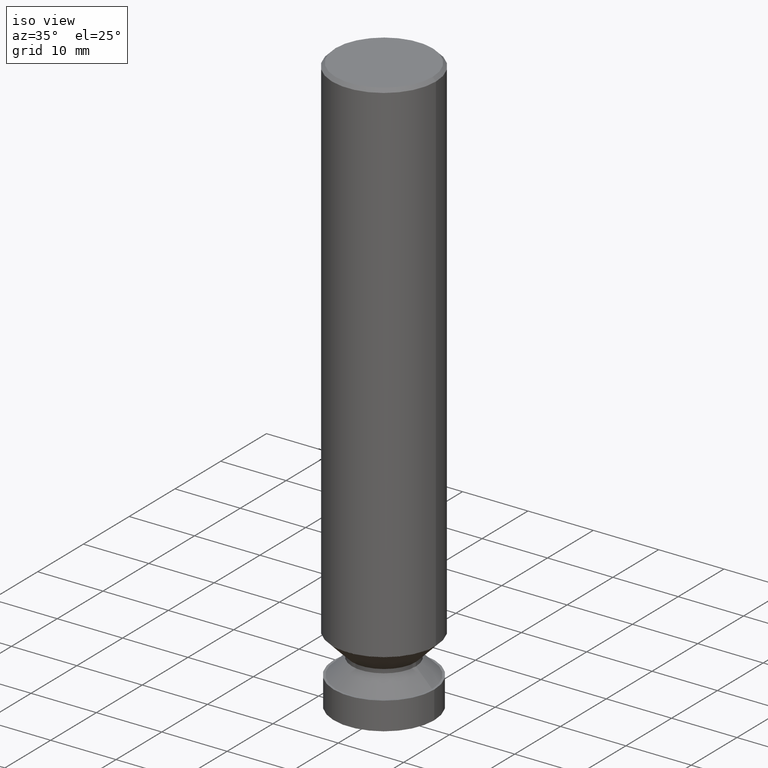
[diagram: clean part render]
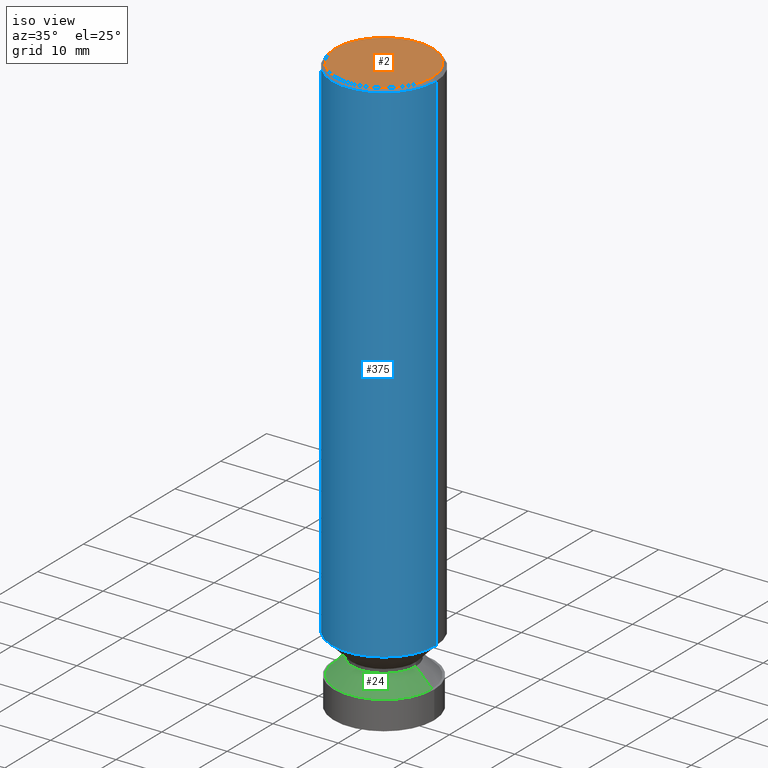
[diagram: same view with three faces highlighted in distinct colors, each labeled with its STEP entity id]
A machine part, iso view with three faces highlighted in distinct colors.
Their STEP definitions:

[orange] entity #2 — the highlighted planar face has unit normal (0, -0, -1).
#2 = ADVANCED_FACE ( 'NONE', ( #811 ), #120, .F. ) ;
#86 = VERTEX_POINT ( 'NONE', #460 ) ;
#97 = DIRECTION ( 'NONE',  ( -2.445468806185136597E-29, 3.491481338843145583E-15, 1.000000000000000000 ) ) ;
#120 = PLANE ( 'NONE',  #568 ) ;
#126 = CARTESIAN_POINT ( 'NONE',  ( 2.042516583223232540E-15, 0.2924999999999999267, -1.023480010969099269E-15 ) ) ;
#132 = CARTESIAN_POINT ( 'NONE',  ( -0.2924999999999999267, 2.077431396611663794E-15, -4.443438714973144205E-18 ) ) ;
#193 = DIRECTION ( 'NONE',  ( -2.445468806185136597E-29, 3.491481338843145583E-15, 1.000000000000000000 ) ) ;
#208 = EDGE_CURVE ( 'NONE', #86, #481, #500, .T. ) ;
#241 = DIRECTION ( 'NONE',  ( 2.438088387897960049E-29, -3.491481338843145188E-15, -1.000000000000000000 ) ) ;
#256 = CIRCLE ( 'NONE', #566, 0.2924999999999999267 ) ;
#308 = DIRECTION ( 'NONE',  ( 1.000000000000000000, -6.982962677686266711E-15, 4.876067333457690598E-29 ) ) ;
#341 = AXIS2_PLACEMENT_3D ( 'NONE', #705, #97, #342 ) ;
#342 = DIRECTION ( 'NONE',  ( 1.000000000000000000, -6.982962677686266711E-15, 4.876067333457690598E-29 ) ) ;
#460 = CARTESIAN_POINT ( 'NONE',  ( 0.2924999999999999267, -2.110215457714319931E-15, -4.443438714944215967E-18 ) ) ;
#481 = VERTEX_POINT ( 'NONE', #132 ) ;
#483 = DIRECTION ( 'NONE',  ( -1.000000000000000000, 6.982962677686265922E-15, -4.876176775795935793E-29 ) ) ;
#500 = CIRCLE ( 'NONE', #341, 0.2924999999999999267 ) ;
#522 = EDGE_CURVE ( 'NONE', #481, #86, #256, .T. ) ;
#538 = ORIENTED_EDGE ( 'NONE', *, *, #208, .T. ) ;
#566 = AXIS2_PLACEMENT_3D ( 'NONE', #611, #193, #308 ) ;
#568 = AXIS2_PLACEMENT_3D ( 'NONE', #126, #241, #483 ) ;
#583 = EDGE_LOOP ( 'NONE', ( #590, #538 ) ) ;
#590 = ORIENTED_EDGE ( 'NONE', *, *, #522, .T. ) ;
#611 = CARTESIAN_POINT ( 'NONE',  ( 1.086629076962696211E-46, -1.551418335357160018E-32, -4.443438714958737479E-18 ) ) ;
#705 = CARTESIAN_POINT ( 'NONE',  ( 1.086629076962696211E-46, -1.551418335357160018E-32, -4.443438714958737479E-18 ) ) ;
#811 = FACE_OUTER_BOUND ( 'NONE', #583, .T. ) ;

[blue] entity #375 — the highlighted cylindrical surface (partial cylindrical patch) has radius 7.9375 mm, axis along (-0, 0, 1).
#44 = VERTEX_POINT ( 'NONE', #452 ) ;
#46 = VERTEX_POINT ( 'NONE', #212 ) ;
#58 = DIRECTION ( 'NONE',  ( 1.000000000000000000, -6.982962677686265133E-15, 0.000000000000000000 ) ) ;
#64 = DIRECTION ( 'NONE',  ( -2.445468806185136597E-29, 3.491481338843145583E-15, 1.000000000000000000 ) ) ;
#99 = CARTESIAN_POINT ( 'NONE',  ( -0.3125000000000000000, 2.112346210000095049E-15, -0.02000000000000009756 ) ) ;
#104 = AXIS2_PLACEMENT_3D ( 'NONE', #650, #523, #352 ) ;
#152 = DIRECTION ( 'NONE',  ( -2.445468806185136877E-29, 3.491481338843145188E-15, 1.000000000000000000 ) ) ;
#194 = EDGE_CURVE ( 'NONE', #46, #707, #516, .T. ) ;
#210 = CARTESIAN_POINT ( 'NONE',  ( -0.3125000000000001665, 2.220446049250314264E-15, -1.537167215704658792E-29 ) ) ;
#212 = CARTESIAN_POINT ( 'NONE',  ( -0.3125000000000003331, -3.210464772715377996E-15, -3.090949362120981370 ) ) ;
#246 = CARTESIAN_POINT ( 'NONE',  ( 4.890937612370297681E-31, -6.982962677686324889E-17, -0.02000000000000009756 ) ) ;
#259 = DIRECTION ( 'NONE',  ( -2.445468806185136597E-29, 3.491481338843145583E-15, 1.000000000000000000 ) ) ;
#260 = LINE ( 'NONE', #441, #787 ) ;
#266 = AXIS2_PLACEMENT_3D ( 'NONE', #246, #64, #58 ) ;
#317 = CYLINDRICAL_SURFACE ( 'NONE', #325, 0.3125000000000001665 ) ;
#325 = AXIS2_PLACEMENT_3D ( 'NONE', #752, #259, #678 ) ;
#340 = ORIENTED_EDGE ( 'NONE', *, *, #194, .F. ) ;
#343 = ORIENTED_EDGE ( 'NONE', *, *, #754, .T. ) ;
#352 = DIRECTION ( 'NONE',  ( 1.000000000000000000, -6.982962677686268288E-15, 0.000000000000000000 ) ) ;
#375 = ADVANCED_FACE ( 'NONE', ( #490 ), #317, .T. ) ;
#395 = ORIENTED_EDGE ( 'NONE', *, *, #412, .F. ) ;
#412 = EDGE_CURVE ( 'NONE', #707, #44, #623, .T. ) ;
#441 = CARTESIAN_POINT ( 'NONE',  ( 0.3125000000000001665, -2.182175836776959530E-15, 1.523805242436230636E-29 ) ) ;
#443 = CIRCLE ( 'NONE', #104, 0.3125000000000003331 ) ;
#452 = CARTESIAN_POINT ( 'NONE',  ( 0.3125000000000000000, -2.213735251080466911E-15, -0.02000000000000009756 ) ) ;
#453 = EDGE_LOOP ( 'NONE', ( #340, #343, #602, #395 ) ) ;
#490 = FACE_OUTER_BOUND ( 'NONE', #453, .T. ) ;
#516 = LINE ( 'NONE', #210, #581 ) ;
#523 = DIRECTION ( 'NONE',  ( -2.445468806185136597E-29, 3.491481338843145583E-15, 1.000000000000000000 ) ) ;
#574 = DIRECTION ( 'NONE',  ( -2.445468806185136877E-29, 3.491481338843145188E-15, 1.000000000000000000 ) ) ;
#581 = VECTOR ( 'NONE', #574, 39.37007874015748143 ) ;
#602 = ORIENTED_EDGE ( 'NONE', *, *, #643, .T. ) ;
#623 = CIRCLE ( 'NONE', #266, 0.3125000000000000000 ) ;
#643 = EDGE_CURVE ( 'NONE', #648, #44, #260, .T. ) ;
#648 = VERTEX_POINT ( 'NONE', #758 ) ;
#650 = CARTESIAN_POINT ( 'NONE',  ( 7.558820246564705853E-29, -1.079199201715452990E-14, -3.090949362120981370 ) ) ;
#678 = DIRECTION ( 'NONE',  ( 1.000000000000000000, -6.982962677686266711E-15, 4.876176775795935232E-29 ) ) ;
#707 = VERTEX_POINT ( 'NONE', #99 ) ;
#752 = CARTESIAN_POINT ( 'NONE',  ( 0.000000000000000000, 0.000000000000000000, 0.000000000000000000 ) ) ;
#754 = EDGE_CURVE ( 'NONE', #46, #648, #443, .T. ) ;
#758 = CARTESIAN_POINT ( 'NONE',  ( 0.3125000000000003331, -1.297416785393149140E-14, -3.090949362120981370 ) ) ;
#787 = VECTOR ( 'NONE', #152, 39.37007874015748143 ) ;

[green] entity #24 — the highlighted conical surface has half-angle 45 deg.
#16 = VERTEX_POINT ( 'NONE', #111 ) ;
#17 = CIRCLE ( 'NONE', #173, 0.2895506378790078106 ) ;
#24 = ADVANCED_FACE ( 'NONE', ( #49 ), #745, .T. ) ;
#25 = LINE ( 'NONE', #339, #738 ) ;
#35 = ORIENTED_EDGE ( 'NONE', *, *, #439, .T. ) ;
#37 = CARTESIAN_POINT ( 'NONE',  ( -0.2895506378790078106, -9.615186004754840058E-15, -3.332999999999999741 ) ) ;
#49 = FACE_OUTER_BOUND ( 'NONE', #736, .T. ) ;
#109 = VERTEX_POINT ( 'NONE', #600 ) ;
#111 = CARTESIAN_POINT ( 'NONE',  ( 0.2895506378790078106, -1.362356887378660573E-14, -3.332999999999999741 ) ) ;
#160 = VERTEX_POINT ( 'NONE', #478 ) ;
#170 = ORIENTED_EDGE ( 'NONE', *, *, #297, .T. ) ;
#173 = AXIS2_PLACEMENT_3D ( 'NONE', #425, #815, #319 ) ;
#195 = DIRECTION ( 'NONE',  ( -0.7071067811866130759, 2.468850131082943764E-15, -0.7071067811864819586 ) ) ;
#201 = VECTOR ( 'NONE', #195, 39.37007874015748143 ) ;
#225 = ORIENTED_EDGE ( 'NONE', *, *, #734, .F. ) ;
#265 = CARTESIAN_POINT ( 'NONE',  ( 8.150747531015059748E-29, -1.163710730236420348E-14, -3.332999999999999741 ) ) ;
#297 = EDGE_CURVE ( 'NONE', #109, #790, #557, .T. ) ;
#319 = DIRECTION ( 'NONE',  ( 1.000000000000000000, -6.982962677686268288E-15, 0.000000000000000000 ) ) ;
#322 = AXIS2_PLACEMENT_3D ( 'NONE', #265, #388, #770 ) ;
#339 = CARTESIAN_POINT ( 'NONE',  ( 0.2895506378790078106, -1.362356887378660573E-14, -3.332999999999999741 ) ) ;
#345 = CIRCLE ( 'NONE', #550, 0.1922499999999864595 ) ;
#388 = DIRECTION ( 'NONE',  ( 2.445468806185136597E-29, -3.491481338843145583E-15, -1.000000000000000000 ) ) ;
#425 = CARTESIAN_POINT ( 'NONE',  ( 8.150747531015059748E-29, -1.163710730236420348E-14, -3.332999999999999741 ) ) ;
#439 = EDGE_CURVE ( 'NONE', #790, #16, #17, .T. ) ;
#463 = DIRECTION ( 'NONE',  ( -2.445468806185136597E-29, 3.491481338843145583E-15, 1.000000000000000000 ) ) ;
#478 = CARTESIAN_POINT ( 'NONE',  ( 0.1922499999999864595, -1.311994177740510795E-14, -3.235699362120996181 ) ) ;
#550 = AXIS2_PLACEMENT_3D ( 'NONE', #654, #463, #660 ) ;
#557 = LINE ( 'NONE', #626, #201 ) ;
#600 = CARTESIAN_POINT ( 'NONE',  ( -0.1922499999999864595, -9.785047685460940438E-15, -3.235699362120996181 ) ) ;
#626 = CARTESIAN_POINT ( 'NONE',  ( -0.2895506378790078106, -9.615186004754840058E-15, -3.332999999999999741 ) ) ;
#654 = CARTESIAN_POINT ( 'NONE',  ( 7.912801856260040491E-29, -1.129738394095212894E-14, -3.235699362120996181 ) ) ;
#660 = DIRECTION ( 'NONE',  ( 1.000000000000000000, -6.982962677686262766E-15, 0.000000000000000000 ) ) ;
#665 = ORIENTED_EDGE ( 'NONE', *, *, #686, .F. ) ;
#686 = EDGE_CURVE ( 'NONE', #160, #16, #25, .T. ) ;
#734 = EDGE_CURVE ( 'NONE', #109, #160, #345, .T. ) ;
#736 = EDGE_LOOP ( 'NONE', ( #665, #225, #170, #35 ) ) ;
#738 = VECTOR ( 'NONE', #777, 39.37007874015748143 ) ;
#745 = CONICAL_SURFACE ( 'NONE', #322, 0.2895506378790078106, 0.7853981633975409826 ) ;
#770 = DIRECTION ( 'NONE',  ( -1.000000000000000000, 6.982962677686268288E-15, 0.000000000000000000 ) ) ;
#777 = DIRECTION ( 'NONE',  ( 0.7071067811866130759, -7.319954787623476926E-15, -0.7071067811864819586 ) ) ;
#790 = VERTEX_POINT ( 'NONE', #37 ) ;
#815 = DIRECTION ( 'NONE',  ( -2.445468806185136597E-29, 3.491481338843145583E-15, 1.000000000000000000 ) ) ;